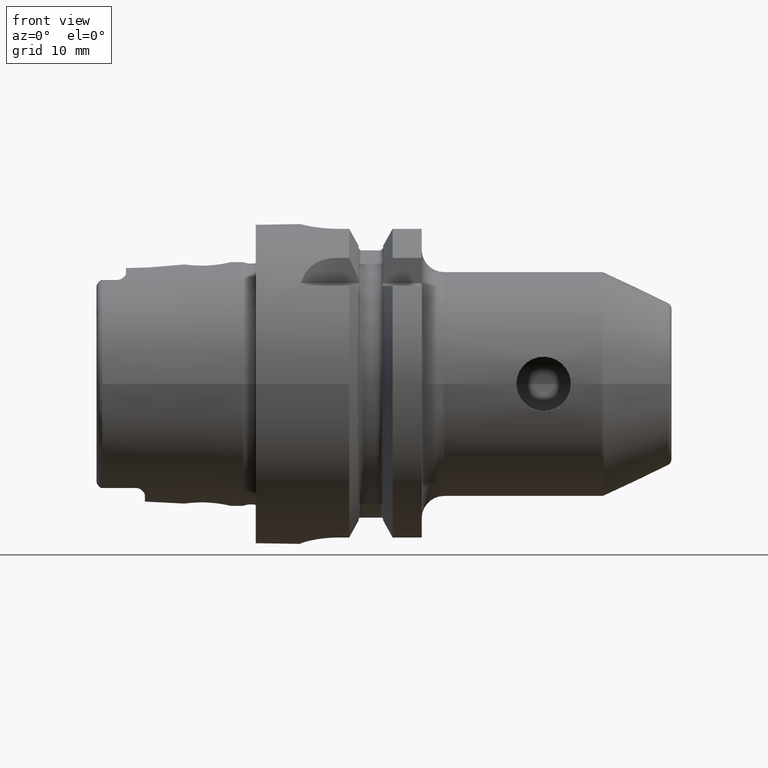
[diagram: clean part render]
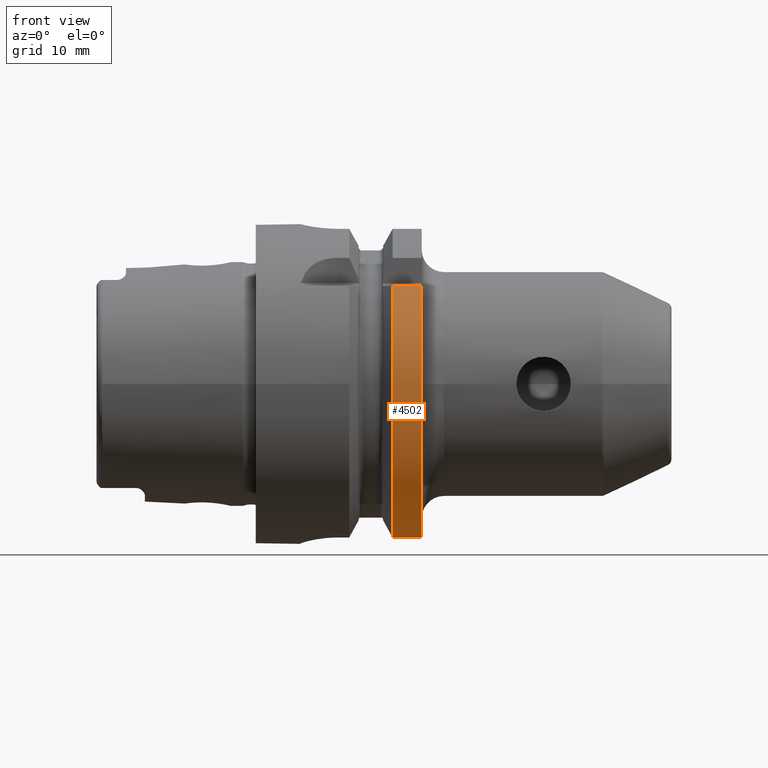
[diagram: same view with one face highlighted and labeled with its STEP entity id]
A machine part, front view. The second image highlights one B-rep face of the part: STEP entity #4502.
In plain terms, the highlighted cylindrical surface (partial cylindrical patch) has radius 25 mm, axis along (1, 0, 0).
Its self-contained STEP definition (entity closure, byte-faithful):
#1019=CARTESIAN_POINT('',(2.595E1,0.E0,0.E0));
#1020=DIRECTION('',(1.E0,0.E0,0.E0));
#1021=DIRECTION('',(0.E0,-7.893060243024E-1,6.14E-1));
#1022=AXIS2_PLACEMENT_3D('',#1019,#1020,#1021);
#1024=DIRECTION('',(1.E0,0.E0,0.E0));
#1025=VECTOR('',#1024,4.558067168511E0);
#1026=CARTESIAN_POINT('',(2.139193283149E1,-7.0175E0,-2.399488890889E1));
#1027=LINE('',#1026,#1025);
#1028=CARTESIAN_POINT('',(2.139193283149E1,0.E0,0.E0));
#1029=DIRECTION('',(-1.E0,0.E0,0.E0));
#1030=DIRECTION('',(0.E0,-2.807E-1,-9.597955563556E-1));
#1031=AXIS2_PLACEMENT_3D('',#1028,#1029,#1030);
#1033=DIRECTION('',(1.E0,0.E0,0.E0));
#1034=VECTOR('',#1033,4.558067168511E0);
#1035=CARTESIAN_POINT('',(2.139193283149E1,-1.973265060756E1,1.535E1));
#1036=LINE('',#1035,#1034);
#2101=CARTESIAN_POINT('',(2.139193283149E1,-1.973265060756E1,1.535E1));
#2147=CARTESIAN_POINT('',(2.139193283149E1,-7.0175E0,-2.399488890889E1));
#3148=VERTEX_POINT('',#2147);
#3195=VERTEX_POINT('',#2101);
#3295=CARTESIAN_POINT('',(2.595E1,-1.973265060756E1,1.535E1));
#3296=VERTEX_POINT('',#3295);
#3337=CARTESIAN_POINT('',(2.595E1,-7.0175E0,-2.399488890889E1));
#3338=VERTEX_POINT('',#3337);
#4487=CARTESIAN_POINT('',(-2.74425E1,0.E0,0.E0));
#4488=DIRECTION('',(1.E0,0.E0,0.E0));
#4489=DIRECTION('',(0.E0,-1.E0,0.E0));
#4490=AXIS2_PLACEMENT_3D('',#4487,#4488,#4489);
#4491=CYLINDRICAL_SURFACE('',#4490,2.5E1);
#4493=ORIENTED_EDGE('',*,*,#4492,.T.);
#4495=ORIENTED_EDGE('',*,*,#4494,.F.);
#4497=ORIENTED_EDGE('',*,*,#4496,.T.);
#4499=ORIENTED_EDGE('',*,*,#4498,.T.);
#4500=EDGE_LOOP('',(#4493,#4495,#4497,#4499));
#4501=FACE_OUTER_BOUND('',#4500,.F.);
#4502=ADVANCED_FACE('',(#4501),#4491,.T.);
#1023=CIRCLE('',#1022,2.5E1);
#1032=CIRCLE('',#1031,2.5E1);
#4492=EDGE_CURVE('',#3296,#3338,#1023,.T.);
#4494=EDGE_CURVE('',#3148,#3338,#1027,.T.);
#4496=EDGE_CURVE('',#3148,#3195,#1032,.T.);
#4498=EDGE_CURVE('',#3195,#3296,#1036,.T.);